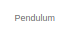
[diagram: root canvas - part 1/3, top left region]
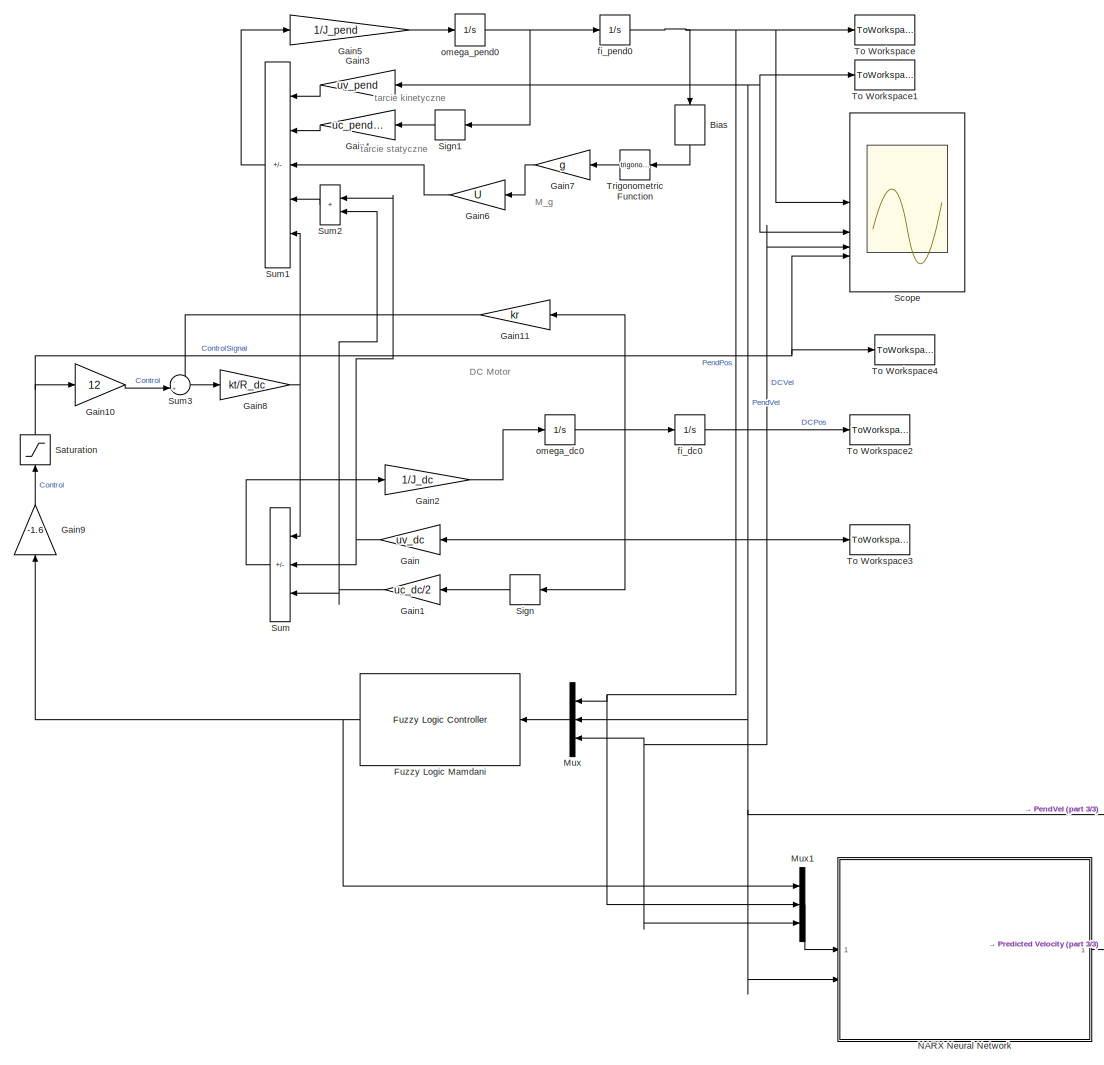
[diagram: root canvas - part 2/3, most of the canvas]
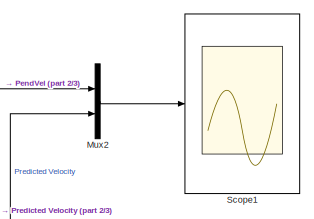
[diagram: root canvas - part 3/3, bottom right region]
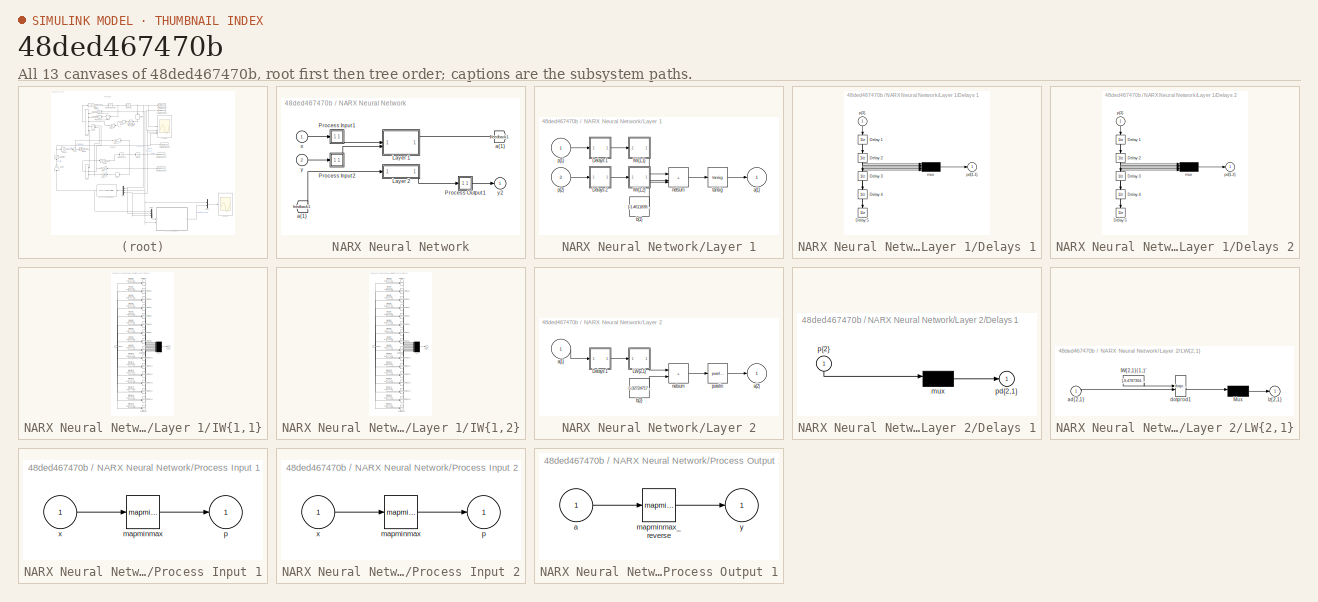
[diagram: thumbnail index - all 13 canvases of the model, root first then tree order]
MODEL slx_48ded467470b
KIND model
CONFIG AbsTol = auto
CONFIG EnableMultiTasking = off
CONFIG FixedStep = auto
CONFIG MaxStep = 1e-2
CONFIG MinStep = auto
CONFIG RelTol = 1e-3
CONFIG SampleTimeConstraint = Unconstrained
CONFIG SolverName = ode23
CONFIG StartTime = 0.0
CONFIG StopTime = 20
BLOCK [Bias] Bias
  Bias = pi
  NameLocation = left
  SaturateOnIntegerOverflow = off
BLOCK [Reference] Fuzzy Logic Mamdani  REF=fuzblock/Fuzzy Logic   (lib defined in mdl_858b3b3e7478)
Controller
  NameLocation = top
  SourceBlock = fuzblock/Fuzzy Logic \nController
  SourceType = Fuzzy Inference System
BLOCK [Gain] Gain
  Gain = uv_dc
  NameLocation = top
BLOCK [Gain] Gain1
  Gain = uc_dc/2
  NameLocation = top
BLOCK [Gain] Gain10
  Gain = 12
BLOCK [Gain] Gain11
  Gain = kr
BLOCK [Gain] Gain2
  Gain = 1/J_dc
BLOCK [Gain] Gain3
  Gain = uv_pend
  NameLocation = top
BLOCK [Gain] Gain4
  Gain = uc_pend/10
  NameLocation = top
BLOCK [Gain] Gain5
  Gain = 1/J_pend
BLOCK [Gain] Gain6
  Gain = U
  NameLocation = top
BLOCK [Gain] Gain7
  Gain = g
  NameLocation = top
BLOCK [Gain] Gain8
  Gain = kt/R_dc
BLOCK [Gain] Gain9
  Gain = -1.6
  NameLocation = right
BLOCK [Mux] Mux
  DisplayOption = bar
  Inputs = 3
  NameLocation = top
BLOCK [Mux] Mux1
  Commented = on
  DisplayOption = bar
  Inputs = 3
BLOCK [Mux] Mux2
  Commented = on
  DisplayOption = bar
  Inputs = 2
BLOCK [SubSystem] NARX Neural Network
  Commented = on
BLOCK [From] NARX Neural Network/ a{1} 
  GotoTag = feedback1
BLOCK [SubSystem] NARX Neural Network/Layer 1
BLOCK [SubSystem] NARX Neural Network/Layer 1/Delays 1
BLOCK [UnitDelay] NARX Neural Network/Layer 1/Delays 1/Delay 1
  InitialCondition = pi_input_1_delayed_1
  NameLocation = left
BLOCK [UnitDelay] NARX Neural Network/Layer 1/Delays 1/Delay 2
  InitialCondition = pi_input_1_delayed_2
  NameLocation = left
BLOCK [UnitDelay] NARX Neural Network/Layer 1/Delays 1/Delay 3
  InitialCondition = pi_input_1_delayed_3
  NameLocation = left
BLOCK [UnitDelay] NARX Neural Network/Layer 1/Delays 1/Delay 4
  InitialCondition = pi_input_1_delayed_4
  NameLocation = left
BLOCK [UnitDelay] NARX Neural Network/Layer 1/Delays 1/Delay 5
  InitialCondition = pi_input_1_delayed_5
  NameLocation = left
BLOCK [Mux] NARX Neural Network/Layer 1/Delays 1/mux
  Inputs = 5
BLOCK [Outport] NARX Neural Network/Layer 1/Delays 1/pd{1,1}
BLOCK [Inport] NARX Neural Network/Layer 1/Delays 1/p{1}
  NameLocation = left
  PortDimensions = 3
  SampleTime = 1
BLOCK [SubSystem] NARX Neural Network/Layer 1/Delays 2
BLOCK [UnitDelay] NARX Neural Network/Layer 1/Delays 2/Delay 1
  InitialCondition = pi_input_2_delayed_1
  NameLocation = left
BLOCK [UnitDelay] NARX Neural Network/Layer 1/Delays 2/Delay 2
  InitialCondition = pi_input_2_delayed_2
  NameLocation = left
BLOCK [UnitDelay] NARX Neural Network/Layer 1/Delays 2/Delay 3
  InitialCondition = pi_input_2_delayed_3
  NameLocation = left
BLOCK [UnitDelay] NARX Neural Network/Layer 1/Delays 2/Delay 4
  InitialCondition = pi_input_2_delayed_4
  NameLocation = left
BLOCK [UnitDelay] NARX Neural Network/Layer 1/Delays 2/Delay 5
  InitialCondition = pi_input_2_delayed_5
  NameLocation = left
BLOCK [Mux] NARX Neural Network/Layer 1/Delays 2/mux
  Inputs = 5
BLOCK [Outport] NARX Neural Network/Layer 1/Delays 2/pd{1,2}
BLOCK [Inport] NARX Neural Network/Layer 1/Delays 2/p{1}
  NameLocation = left
  PortDimensions = 1
  SampleTime = 1
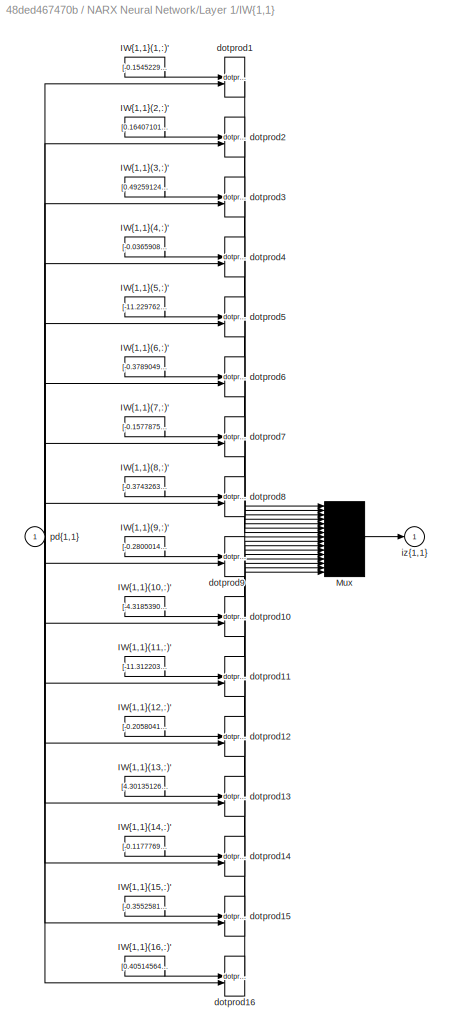
BLOCK [SubSystem] NARX Neural Network/Layer 1/IW{1,1}
BLOCK [Constant] NARX Neural Network/Layer 1/IW{1,1}/IW{1,1}(1,:)'
  Value = [-0.1545229042583383949338582397103891707956790924072265625;-0.96186348302548996258565239259041845798492431640625;0.89991141563431231720215919267502613365650177001953125;0.80910559116573554927498435063171200454235076904296875;0.484893625122811255945265429545543156564235687255859375;2.067594473521470188615012375521473586559295654296875;-0.04005411090331210954840202020932338200509548187255859375;0.7...<+451ch>
BLOCK [Constant] NARX Neural Network/Layer 1/IW{1,1}/IW{1,1}(10,:)'
  Value = [-4.31853902893846086641360670910216867923736572265625;2.3107320934905057896457947208546102046966552734375;-0.08609635826092328081404758677308564074337482452392578125;3.291098663162199233767069017631001770496368408203125;-3.03513911107525924393257810152135789394378662109375;1.0210140464537704740877188669401220977306365966796875;0.289464480145510683062326506842509843409061431884765625;3.78806232839...<+416ch>
BLOCK [Constant] NARX Neural Network/Layer 1/IW{1,1}/IW{1,1}(11,:)'
  Value = [-11.3122036469094258137602082570083439350128173828125;5.93226325782503227657116440241225063800811767578125;-4.06250080451016248872520009172149002552032470703125;9.502181894126881189777122926898300647735595703125;-4.12132173209778951417092685005627572536468505859375;9.1637491315415076087447232566773891448974609375;2.080560966524611199446326281758956611156463623046875;5.4537753102481998368489257700...<+399ch>
BLOCK [Constant] NARX Neural Network/Layer 1/IW{1,1}/IW{1,1}(12,:)'
  Value = [-0.2058041235135446289650218432143446989357471466064453125;-0.283834813198554913871163307703682221472263336181640625;-0.448317552331036484059012536818045191466808319091796875;0.91140787362243680380657906425767578184604644775390625;1.11803880540155464728968581766821444034576416015625;-0.8294896847462640554482504740008153021335601806640625;0.3945265846740415582871719379909336566925048828125;-0.7323...<+431ch>
BLOCK [Constant] NARX Neural Network/Layer 1/IW{1,1}/IW{1,1}(13,:)'
  Value = [4.30135126606410356231435798690654337406158447265625;-0.4016575441077978592119279710459522902965545654296875;-1.24758396324827902645893118460662662982940673828125;-3.1249647327038676536403727368451654911041259765625;0.96870814590598885995831324180471710860729217529296875;2.48854756445259628350186176248826086521148681640625;-0.425352889395446520648391697250190190970897674560546875;-3.6529684181957...<+417ch>
BLOCK [Constant] NARX Neural Network/Layer 1/IW{1,1}/IW{1,1}(14,:)'
  Value = [-0.117776952675239687806652000290341675281524658203125;-1.048233263432347239785258352640084922313690185546875;-1.916212214496942234376319902366958558559417724609375;0.767991482679361237018156316480599343776702880859375;0.84190424018547893592057107525761239230632781982421875;-1.15274317028532724549449994810856878757476806640625;0.42831623343799518632835088283172808587551116943359375;0.248280300023...<+429ch>
BLOCK [Constant] NARX Neural Network/Layer 1/IW{1,1}/IW{1,1}(15,:)'
  Value = [-0.355258152717961295241622110552270896732807159423828125;-0.6793384303563094750444406599854119122028350830078125;1.556926184589264128277363852248527109622955322265625;0.97476361366835106991857173852622509002685546875;-0.26876437336980429915200829782406799495220184326171875;5.2702990132548794832700878032483160495758056640625;-1.24607874843459054403638219810090959072113037109375;0.3564337235625874...<+428ch>
BLOCK [Constant] NARX Neural Network/Layer 1/IW{1,1}/IW{1,1}(16,:)'
  Value = [0.405145645826167688507979391943081282079219818115234375;-0.9683326037188784152220932810450904071331024169921875;-3.01828172068740396838393280631862580776214599609375;-0.98249373577424770065391612661187537014484405517578125;0.126750259362730377521444324884214438498020172119140625;-4.09786193734595993731772978208027780055999755859375;1.1281171122443847121274984601768665015697479248046875;1.5647443...<+430ch>
BLOCK [Constant] NARX Neural Network/Layer 1/IW{1,1}/IW{1,1}(2,:)'
  Value = [0.1640710178293393328718963175560929812490940093994140625;-0.71299518019257079881612071403651498258113861083984375;-2.19435164891444589585489666205830872058868408203125;-0.20722715283148585019290521813672967255115509033203125;0.1805731919815765362802295612709713168442249298095703125;-2.80163681761241445400401062215678393840789794921875;0.68842371224039933252925038686953485012054443359375;0.970127...<+432ch>
BLOCK [Constant] NARX Neural Network/Layer 1/IW{1,1}/IW{1,1}(3,:)'
  Value = [0.492591241431367177217026664948207326233386993408203125;0.9129080004677574411431351109058596193790435791015625;-1.2735458806539339260410770293674431741237640380859375;-1.384443146634420696017286900314502418041229248046875;-0.133662283774207468756145544830360449850559234619140625;-7.1841321277697289815478143282234668731689453125;1.6482652306387939322718239054665900766849517822265625;0.35189520770...<+429ch>
BLOCK [Constant] NARX Neural Network/Layer 1/IW{1,1}/IW{1,1}(4,:)'
  Value = [-0.036590832741877403477825936306544463150203227996826171875;-0.468406362319216673650856819222099147737026214599609375;1.6834827024742138323887274964363314211368560791015625;0.58656235200846484900694122188724577426910400390625;1.280922692004135665655439879628829658031463623046875;-0.74507832750464475513041406884440220892429351806640625;0.67722262162355939540958615907584317028522491455078125;0.502...<+439ch>
BLOCK [Constant] NARX Neural Network/Layer 1/IW{1,1}/IW{1,1}(5,:)'
  Value = [-11.229762430567149067428545095026493072509765625;5.85254163515014891316923240083269774913787841796875;-4.17667224112231139088180498220026493072509765625;9.45518307380465472533614956773817539215087890625;-3.978111055043802135600117253488861024379730224609375;10.1834257906427527728965287678875029087066650390625;2.040008755976502552442752858041785657405853271484375;5.3316495857835981553307647118344...<+393ch>
BLOCK [Constant] NARX Neural Network/Layer 1/IW{1,1}/IW{1,1}(6,:)'
  Value = [-0.37890493516785073158104069079854525625705718994140625;-1.082063020341899051146583587978966534137725830078125;-17.17574901157163225207114010117948055267333984375;0.433817673016630156457296152439084835350513458251953125;0.28566307413047542507200660111266188323497772216796875;-4.367406840024525394028387381695210933685302734375;0.434568323969999836808852933245361782610416412353515625;-0.2354348988...<+422ch>
BLOCK [Constant] NARX Neural Network/Layer 1/IW{1,1}/IW{1,1}(7,:)'
  Value = [-0.1577875832114195298050418614366208203136920928955078125;1.249216612760659206315949631971307098865509033203125;0.144964395873974749573420695014647208154201507568359375;0.44571839072065955189572150629828684031963348388671875;-1.76407989335345849468694723327644169330596923828125;-2.718715718763743183217229670844972133636474609375;-0.41414769049685584700881690878304652869701385498046875;0.97441012...<+445ch>
BLOCK [Constant] NARX Neural Network/Layer 1/IW{1,1}/IW{1,1}(8,:)'
  Value = [-0.37432632755962058634935374357155524194240570068359375;0.7930298561100610488239226469886489212512969970703125;-18.312290685703118242599884979426860809326171875;0.418644401182388048443527850395184941589832305908203125;-1.9722966006950652939622159465216100215911865234375;-4.03006119125274597791985797812230885028839111328125;0.438515186955970637239232701176661066710948944091796875;0.12709858910762...<+418ch>
BLOCK [Constant] NARX Neural Network/Layer 1/IW{1,1}/IW{1,1}(9,:)'
  Value = [-0.2800014949785374351876043874653987586498260498046875;1.3954722749632415546017227825359441339969635009765625;4.83686313824391245219658230780623853206634521484375;0.5224157567332767815315719417412765324115753173828125;-0.02471542295100807862251457436286727897822856903076171875;-7.66696414046361862659750840975902974605560302734375;-0.52923570729363211828655266799614764750003814697265625;-0.826100...<+432ch>
BLOCK [Mux] NARX Neural Network/Layer 1/IW{1,1}/Mux
  Inputs = 16
BLOCK [Reference] NARX Neural Network/Layer 1/IW{1,1}/dotprod1  REF=neural/Weight Functions/dotprod
  SourceBlock = neural/Weight Functions/dotprod
  SourceType = DOTPROD
BLOCK [Reference] NARX Neural Network/Layer 1/IW{1,1}/dotprod10  REF=neural/Weight Functions/dotprod
  SourceBlock = neural/Weight Functions/dotprod
  SourceType = DOTPROD
BLOCK [Reference] NARX Neural Network/Layer 1/IW{1,1}/dotprod11  REF=neural/Weight Functions/dotprod
  SourceBlock = neural/Weight Functions/dotprod
  SourceType = DOTPROD
BLOCK [Reference] NARX Neural Network/Layer 1/IW{1,1}/dotprod12  REF=neural/Weight Functions/dotprod
  SourceBlock = neural/Weight Functions/dotprod
  SourceType = DOTPROD
BLOCK [Reference] NARX Neural Network/Layer 1/IW{1,1}/dotprod13  REF=neural/Weight Functions/dotprod
  SourceBlock = neural/Weight Functions/dotprod
  SourceType = DOTPROD
BLOCK [Reference] NARX Neural Network/Layer 1/IW{1,1}/dotprod14  REF=neural/Weight Functions/dotprod
  SourceBlock = neural/Weight Functions/dotprod
  SourceType = DOTPROD
BLOCK [Reference] NARX Neural Network/Layer 1/IW{1,1}/dotprod15  REF=neural/Weight Functions/dotprod
  SourceBlock = neural/Weight Functions/dotprod
  SourceType = DOTPROD
BLOCK [Reference] NARX Neural Network/Layer 1/IW{1,1}/dotprod16  REF=neural/Weight Functions/dotprod
  SourceBlock = neural/Weight Functions/dotprod
  SourceType = DOTPROD
BLOCK [Reference] NARX Neural Network/Layer 1/IW{1,1}/dotprod2  REF=neural/Weight Functions/dotprod
  SourceBlock = neural/Weight Functions/dotprod
  SourceType = DOTPROD
BLOCK [Reference] NARX Neural Network/Layer 1/IW{1,1}/dotprod3  REF=neural/Weight Functions/dotprod
  SourceBlock = neural/Weight Functions/dotprod
  SourceType = DOTPROD
BLOCK [Reference] NARX Neural Network/Layer 1/IW{1,1}/dotprod4  REF=neural/Weight Functions/dotprod
  SourceBlock = neural/Weight Functions/dotprod
  SourceType = DOTPROD
BLOCK [Reference] NARX Neural Network/Layer 1/IW{1,1}/dotprod5  REF=neural/Weight Functions/dotprod
  SourceBlock = neural/Weight Functions/dotprod
  SourceType = DOTPROD
BLOCK [Reference] NARX Neural Network/Layer 1/IW{1,1}/dotprod6  REF=neural/Weight Functions/dotprod
  SourceBlock = neural/Weight Functions/dotprod
  SourceType = DOTPROD
BLOCK [Reference] NARX Neural Network/Layer 1/IW{1,1}/dotprod7  REF=neural/Weight Functions/dotprod
  SourceBlock = neural/Weight Functions/dotprod
  SourceType = DOTPROD
BLOCK [Reference] NARX Neural Network/Layer 1/IW{1,1}/dotprod8  REF=neural/Weight Functions/dotprod
  SourceBlock = neural/Weight Functions/dotprod
  SourceType = DOTPROD
BLOCK [Reference] NARX Neural Network/Layer 1/IW{1,1}/dotprod9  REF=neural/Weight Functions/dotprod
  SourceBlock = neural/Weight Functions/dotprod
  SourceType = DOTPROD
BLOCK [Outport] NARX Neural Network/Layer 1/IW{1,1}/iz{1,1}
BLOCK [Inport] NARX Neural Network/Layer 1/IW{1,1}/pd{1,1}
  PortDimensions = 15
  SampleTime = 1
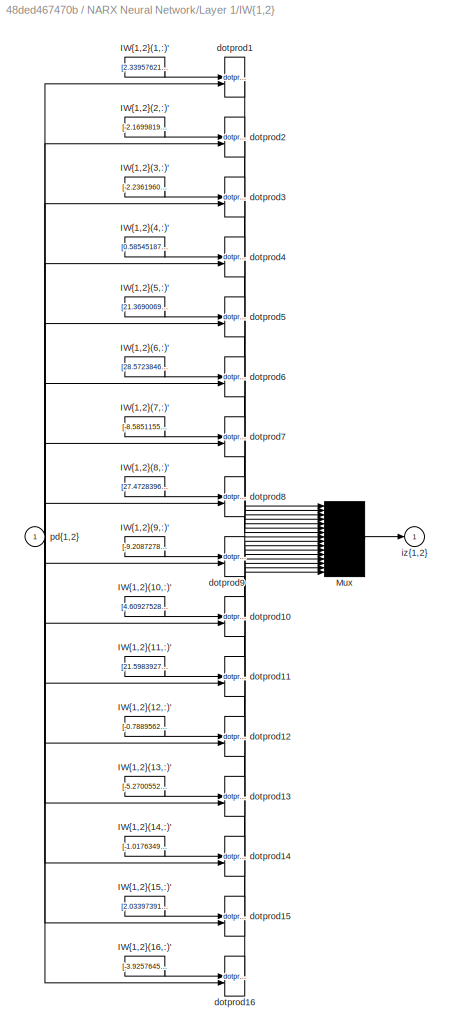
BLOCK [SubSystem] NARX Neural Network/Layer 1/IW{1,2}
BLOCK [Constant] NARX Neural Network/Layer 1/IW{1,2}/IW{1,2}(1,:)'
  Value = [2.33957621553661443414284804021008312702178955078125;-2.038164296392823704451302546658553183078765869140625;-0.329636297113397425118108685637707822024822235107421875;-1.456153806944628481545578324585221707820892333984375;1.4517865692069580330070266427355818450450897216796875]
BLOCK [Constant] NARX Neural Network/Layer 1/IW{1,2}/IW{1,2}(10,:)'
  Value = [4.60927528150380982907563520711846649646759033203125;10.581683193710926360608937102369964122772216796875;3.1145923521644736098323846817947924137115478515625;-3.3427786564308430428127394407056272029876708984375;-6.474745502398718599579297006130218505859375]
BLOCK [Constant] NARX Neural Network/Layer 1/IW{1,2}/IW{1,2}(11,:)'
  Value = [21.598392787297829187309616827405989170074462890625;-4.48557906819758489547211866010911762714385986328125;-1.1565539272489642197427883729687891900539398193359375;8.475737416050630912423002882860600948333740234375;6.108701241118534852603261242620646953582763671875]
BLOCK [Constant] NARX Neural Network/Layer 1/IW{1,2}/IW{1,2}(12,:)'
  Value = [-0.78895625752572107192150951959774829447269439697265625;1.043110076266716479409524254151619970798492431640625;2.335359633717465133173618596629239618778228759765625;-5.09183657225189012507371444371528923511505126953125;2.625270767649209968652712632319889962673187255859375]
BLOCK [Constant] NARX Neural Network/Layer 1/IW{1,2}/IW{1,2}(13,:)'
  Value = [-5.2700552150848505306157676386646926403045654296875;-8.807242356293642160380841232836246490478515625;-4.6057514943586266298325426760129630565643310546875;3.982493978912870158382020235876552760601043701171875;6.17969038038835538628745780442841351032257080078125]
BLOCK [Constant] NARX Neural Network/Layer 1/IW{1,2}/IW{1,2}(14,:)'
  Value = [-1.0176349918865377208732070357655175030231475830078125;1.043168240790681267071704496629536151885986328125;-0.44185732410694900096359560848213732242584228515625;-2.514952603014138698966917218058370053768157958984375;3.065052364150991248692434965050779283046722412109375]
BLOCK [Constant] NARX Neural Network/Layer 1/IW{1,2}/IW{1,2}(15,:)'
  Value = [2.033973915029196888326623593457043170928955078125;-10.930721019002742622205914813093841075897216796875;8.02866983825398250473881489597260951995849609375;-0.1712901654961903330498529385295114479959011077880859375;0.7527962232367162442869812366552650928497314453125]
BLOCK [Constant] NARX Neural Network/Layer 1/IW{1,2}/IW{1,2}(16,:)'
  Value = [-3.925764540236582167409551402670331299304962158203125;7.283058887396947511660982854664325714111328125;-5.3838596306788542023014088044874370098114013671875;1.4528199913436037338243522754055447876453399658203125;0.69704769864014248792472017157706432044506072998046875]
BLOCK [Constant] NARX Neural Network/Layer 1/IW{1,2}/IW{1,2}(2,:)'
  Value = [-2.169981942240450933923057164065539836883544921875;4.37853380666860658720906940288841724395751953125;-3.98099962394213147121035945019684731960296630859375;0.499499726470544247458605013889609836041927337646484375;1.3827003955349697061905089867650531232357025146484375]
BLOCK [Constant] NARX Neural Network/Layer 1/IW{1,2}/IW{1,2}(3,:)'
  Value = [-2.23619601004153256695872187265194952487945556640625;13.72071225933132154750637710094451904296875;-9.0885617165941088302361094974912703037261962890625;-0.74279980741555007295318091564695350825786590576171875;-1.3021546902496605735422008365276269614696502685546875]
BLOCK [Constant] NARX Neural Network/Layer 1/IW{1,2}/IW{1,2}(4,:)'
  Value = [0.585451876023818318373059810255654156208038330078125;2.5430682930140537933993982733227312564849853515625;-0.8195304603695852119216169739956967532634735107421875;-3.540420735219776293689619706128723919391632080078125;1.1791412691857361405567417023121379315853118896484375]
BLOCK [Constant] NARX Neural Network/Layer 1/IW{1,2}/IW{1,2}(5,:)'
  Value = [21.36900690499017940737758181057870388031005859375;-3.752392995656072205434838906512595713138580322265625;-2.228759379662606843197636408149264752864837646484375;9.3036441140549559492001208127476274967193603515625;5.747979956639614584901210037060081958770751953125]
BLOCK [Constant] NARX Neural Network/Layer 1/IW{1,2}/IW{1,2}(6,:)'
  Value = [28.5723846333076068049194873310625553131103515625;4.02720667914904151274413379724137485027313232421875;-6.6655795710645922014236930408515036106109619140625;-9.7257694465923076876379127497784793376922607421875;-11.5124484998806480007260688580572605133056640625]
BLOCK [Constant] NARX Neural Network/Layer 1/IW{1,2}/IW{1,2}(7,:)'
  Value = [-8.585115533667735832068501622416079044342041015625;-4.21790398482044448513761381036601960659027099609375;3.62251687229476448948162214946933090686798095703125;3.766870614350047663521081631188280880451202392578125;4.44338264357204604237949752132408320903778076171875]
BLOCK [Constant] NARX Neural Network/Layer 1/IW{1,2}/IW{1,2}(8,:)'
  Value = [27.4728396563449024370129336602985858917236328125;4.81926333249470673081304994411766529083251953125;-5.89045232730261947295957725145854055881500244140625;-10.419836390636003642384821432642638683319091796875;-11.3347086507183743009363752207718789577484130859375]
BLOCK [Constant] NARX Neural Network/Layer 1/IW{1,2}/IW{1,2}(9,:)'
  Value = [-9.20872787802709780180521192960441112518310546875;-6.59192325361574926745333868893794715404510498046875;3.426758375336147022238719728193245828151702880859375;5.46443431498339560192789576831273734569549560546875;5.70124885185029572909343187347985804080963134765625]
BLOCK [Mux] NARX Neural Network/Layer 1/IW{1,2}/Mux
  Inputs = 16
BLOCK [Reference] NARX Neural Network/Layer 1/IW{1,2}/dotprod1  REF=neural/Weight Functions/dotprod
  SourceBlock = neural/Weight Functions/dotprod
  SourceType = DOTPROD
BLOCK [Reference] NARX Neural Network/Layer 1/IW{1,2}/dotprod10  REF=neural/Weight Functions/dotprod
  SourceBlock = neural/Weight Functions/dotprod
  SourceType = DOTPROD
BLOCK [Reference] NARX Neural Network/Layer 1/IW{1,2}/dotprod11  REF=neural/Weight Functions/dotprod
  SourceBlock = neural/Weight Functions/dotprod
  SourceType = DOTPROD
BLOCK [Reference] NARX Neural Network/Layer 1/IW{1,2}/dotprod12  REF=neural/Weight Functions/dotprod
  SourceBlock = neural/Weight Functions/dotprod
  SourceType = DOTPROD
BLOCK [Reference] NARX Neural Network/Layer 1/IW{1,2}/dotprod13  REF=neural/Weight Functions/dotprod
  SourceBlock = neural/Weight Functions/dotprod
  SourceType = DOTPROD
BLOCK [Reference] NARX Neural Network/Layer 1/IW{1,2}/dotprod14  REF=neural/Weight Functions/dotprod
  SourceBlock = neural/Weight Functions/dotprod
  SourceType = DOTPROD
BLOCK [Reference] NARX Neural Network/Layer 1/IW{1,2}/dotprod15  REF=neural/Weight Functions/dotprod
  SourceBlock = neural/Weight Functions/dotprod
  SourceType = DOTPROD
BLOCK [Reference] NARX Neural Network/Layer 1/IW{1,2}/dotprod16  REF=neural/Weight Functions/dotprod
  SourceBlock = neural/Weight Functions/dotprod
  SourceType = DOTPROD
BLOCK [Reference] NARX Neural Network/Layer 1/IW{1,2}/dotprod2  REF=neural/Weight Functions/dotprod
  SourceBlock = neural/Weight Functions/dotprod
  SourceType = DOTPROD
BLOCK [Reference] NARX Neural Network/Layer 1/IW{1,2}/dotprod3  REF=neural/Weight Functions/dotprod
  SourceBlock = neural/Weight Functions/dotprod
  SourceType = DOTPROD
BLOCK [Reference] NARX Neural Network/Layer 1/IW{1,2}/dotprod4  REF=neural/Weight Functions/dotprod
  SourceBlock = neural/Weight Functions/dotprod
  SourceType = DOTPROD
BLOCK [Reference] NARX Neural Network/Layer 1/IW{1,2}/dotprod5  REF=neural/Weight Functions/dotprod
  SourceBlock = neural/Weight Functions/dotprod
  SourceType = DOTPROD
BLOCK [Reference] NARX Neural Network/Layer 1/IW{1,2}/dotprod6  REF=neural/Weight Functions/dotprod
  SourceBlock = neural/Weight Functions/dotprod
  SourceType = DOTPROD
BLOCK [Reference] NARX Neural Network/Layer 1/IW{1,2}/dotprod7  REF=neural/Weight Functions/dotprod
  SourceBlock = neural/Weight Functions/dotprod
  SourceType = DOTPROD
BLOCK [Reference] NARX Neural Network/Layer 1/IW{1,2}/dotprod8  REF=neural/Weight Functions/dotprod
  SourceBlock = neural/Weight Functions/dotprod
  SourceType = DOTPROD
BLOCK [Reference] NARX Neural Network/Layer 1/IW{1,2}/dotprod9  REF=neural/Weight Functions/dotprod
  SourceBlock = neural/Weight Functions/dotprod
  SourceType = DOTPROD
BLOCK [Outport] NARX Neural Network/Layer 1/IW{1,2}/iz{1,2}
BLOCK [Inport] NARX Neural Network/Layer 1/IW{1,2}/pd{1,2}
  PortDimensions = 5
  SampleTime = 1
BLOCK [Outport] NARX Neural Network/Layer 1/a{1}
  InitialOutput = [0;0;0;0;0;0;0;0;0;0;0;0;0;0;0;0]
BLOCK [Constant] NARX Neural Network/Layer 1/b{1}
  Value = [-1.4611839464535985033677434330456890165805816650390625;1.0301841234885049658487332635559141635894775390625;-1.15288202818684482053868123330175876617431640625;-1.561586935411390708594581155921332538127899169921875;0.00345597052504738495859459845860328641720116138458251953125;-0.006509689634341390973570895539523917250335216522216796875;0.000195421264286061959402837628907434464053949341177940368652...<+542ch>
BLOCK [Sum] NARX Neural Network/Layer 1/netsum
  IconShape = rectangular
  InputSameDT = on
  Inputs = 3
  OutDataTypeStr = Inherit: Same as first input
  SaturateOnIntegerOverflow = on
BLOCK [Inport] NARX Neural Network/Layer 1/p{1}
  PortDimensions = 3
  SampleTime = 1
BLOCK [Inport] NARX Neural Network/Layer 1/p{2}
  Port = 2
  PortDimensions = 1
  SampleTime = 1
BLOCK [Reference] NARX Neural Network/Layer 1/tansig  REF=neural/Transfer Functions/tansig
  SourceBlock = neural/Transfer Functions/tansig
  SourceType = TANSIG
BLOCK [SubSystem] NARX Neural Network/Layer 2
BLOCK [SubSystem] NARX Neural Network/Layer 2/Delays 1
BLOCK [Mux] NARX Neural Network/Layer 2/Delays 1/mux
  Inputs = 1
BLOCK [Outport] NARX Neural Network/Layer 2/Delays 1/pd{2,1}
BLOCK [Inport] NARX Neural Network/Layer 2/Delays 1/p{2}
  NameLocation = left
  PortDimensions = 16
  SampleTime = 1
BLOCK [SubSystem] NARX Neural Network/Layer 2/LW{2,1}
BLOCK [Constant] NARX Neural Network/Layer 2/LW{2,1}/IW{2,1}(1,:)'
  Value = [-9.4787304848626252606891284813173115253448486328125;15.31243799939991134806405170820653438568115234375;-5.52654974411817168089555707410909235477447509765625;3.977808003020636196112036486738361418247222900390625;-3.3778480689296070949012573692016303539276123046875;-6.5233884098060794798357164836488664150238037109375;-7.61783875947848887477675816626287996768951416015625;6.5356929764733378007690589...<+439ch>
BLOCK [Mux] NARX Neural Network/Layer 2/LW{2,1}/Mux
  Inputs = 1
BLOCK [Inport] NARX Neural Network/Layer 2/LW{2,1}/ad{2,1}
  PortDimensions = 16
  SampleTime = 1
BLOCK [Reference] NARX Neural Network/Layer 2/LW{2,1}/dotprod1  REF=neural/Weight Functions/dotprod
  SourceBlock = neural/Weight Functions/dotprod
  SourceType = DOTPROD
BLOCK [Outport] NARX Neural Network/Layer 2/LW{2,1}/lz{2,1}
BLOCK [Inport] NARX Neural Network/Layer 2/a{1} 
  PortDimensions = 16
  SampleTime = 1
BLOCK [Outport] NARX Neural Network/Layer 2/a{2}
  InitialOutput = 0
BLOCK [Constant] NARX Neural Network/Layer 2/b{2}
  Value = -5.027247175947422874742187559604644775390625
BLOCK [Sum] NARX Neural Network/Layer 2/netsum
  IconShape = rectangular
  InputSameDT = on
  Inputs = 2
  OutDataTypeStr = Inherit: Same as first input
  SaturateOnIntegerOverflow = on
BLOCK [Reference] NARX Neural Network/Layer 2/purelin  REF=neural/Transfer Functions/purelin
  SourceBlock = neural/Transfer Functions/purelin
  SourceType = PURELIN
BLOCK [SubSystem] NARX Neural Network/Process Input 1
BLOCK [Reference] NARX Neural Network/Process Input 1/mapminmax  REF=neural/Processing Functions/mapminmax
  SourceBlock = neural/Processing Functions/mapminmax
  SourceType = MAPMINMAX Preprocess
BLOCK [Outport] NARX Neural Network/Process Input 1/p
  PortDimensions = 3
  SampleTime = 1
BLOCK [Inport] NARX Neural Network/Process Input 1/x
  PortDimensions = 3
  SampleTime = 1
BLOCK [SubSystem] NARX Neural Network/Process Input 2
BLOCK [Reference] NARX Neural Network/Process Input 2/mapminmax  REF=neural/Processing Functions/mapminmax
  SourceBlock = neural/Processing Functions/mapminmax
  SourceType = MAPMINMAX Preprocess
BLOCK [Outport] NARX Neural Network/Process Input 2/p
  PortDimensions = 1
  SampleTime = 1
BLOCK [Inport] NARX Neural Network/Process Input 2/x
  PortDimensions = 1
  SampleTime = 1
BLOCK [SubSystem] NARX Neural Network/Process Output 1
BLOCK [Inport] NARX Neural Network/Process Output 1/a
  PortDimensions = 1
  SampleTime = 1
BLOCK [Reference] NARX Neural Network/Process Output 1/mapminmax_reverse  REF=neural/Processing Functions/mapminmax_reverse
  SourceBlock = neural/Processing Functions/mapminmax_reverse
  SourceType = MAPMINMAX Reverse Process
BLOCK [Outport] NARX Neural Network/Process Output 1/y
  PortDimensions = 1
  SampleTime = 1
BLOCK [Goto] NARX Neural Network/a{1}
  GotoTag = feedback1
BLOCK [Inport] NARX Neural Network/x
  PortDimensions = 3
  SampleTime = 1
BLOCK [Inport] NARX Neural Network/y
  Port = 2
  PortDimensions = 1
  SampleTime = 1
BLOCK [Outport] NARX Neural Network/y2
  InitialOutput = 0
BLOCK [Saturate] Saturation
  LowerLimit = -1
  NameLocation = right
  UpperLimit = 1
BLOCK [Scope] Scope
  Floating = off
  NumInputPorts = 4
  ScopeSpecificationString = Simulink.scopes.TimeScopeBlockCfg('CurrentConfiguration', extmgr.ConfigurationSet(extmgr.Configuration('Core','General UI',true),extmgr.Configuration('Core','Source UI',true),extmgr.Configuration('Sources','WiredSimulink',true,'DataLogging',true,'DataLoggingSaveFormat','StructureWithTime'),extmgr.Configuration('Visuals','Time Domain',true,'SerializedDisplays',{struct('MinYLimReal','-0.47674','MaxY...<+5354ch>
BLOCK [Scope] Scope1
  Commented = on
  Floating = off
  NumInputPorts = 1
  ScopeSpecificationString = Simulink.scopes.TimeScopeBlockCfg('CurrentConfiguration', extmgr.ConfigurationSet(extmgr.Configuration('Core','General UI',true),extmgr.Configuration('Core','Source UI',true),extmgr.Configuration('Sources','WiredSimulink',true,'DataLoggingSaveFormat','StructureWithTime','DataLoggingVariableName','ScopeData1'),extmgr.Configuration('Visuals','Time Domain',true,'SerializedDisplays',{struct('MinYLimRe...<+1737ch>
BLOCK [Signum] Sign
  NameLocation = top
  ZeroCross = off
BLOCK [Signum] Sign1
  NameLocation = top
  ZeroCross = off
BLOCK [Sum] Sum
  IconShape = rectangular
  Inputs = +--
  NameLocation = top
BLOCK [Sum] Sum1
  IconShape = rectangular
  Inputs = ---+-
  NameLocation = top
BLOCK [Sum] Sum2
  IconShape = rectangular
  NameLocation = top
BLOCK [Sum] Sum3
  Inputs = -+|
BLOCK [ToWorkspace] To Workspace
  FixptAsFi = on
  MaxDataPoints = inf
  SampleTime = -1
  SaveFormat = Structure With Time
  VariableName = PendPos
BLOCK [ToWorkspace] To Workspace1
  FixptAsFi = on
  MaxDataPoints = inf
  SampleTime = -1
  SaveFormat = Structure With Time
  VariableName = PendVel
BLOCK [ToWorkspace] To Workspace2
  FixptAsFi = on
  MaxDataPoints = inf
  SampleTime = -1
  SaveFormat = Structure With Time
  VariableName = dcPos
BLOCK [ToWorkspace] To Workspace3
  FixptAsFi = on
  MaxDataPoints = inf
  SampleTime = -1
  SaveFormat = Structure With Time
  VariableName = dcVel
BLOCK [ToWorkspace] To Workspace4
  FixptAsFi = on
  MaxDataPoints = inf
  SampleTime = -1
  SaveFormat = Structure With Time
  VariableName = Control
BLOCK [Trigonometry] Trigonometric Function
  NameLocation = top
BLOCK [Integrator] fi_dc0
  InitialCondition = fi_dc0
BLOCK [Integrator] fi_pend0
  InitialCondition = fi_pend0%deg2rad(30)
BLOCK [Integrator] omega_dc0
  InitialCondition = 0%deg2rad(25000)
BLOCK [Integrator] omega_pend0
  InitialCondition = 0%deg2rad(30)
ANNOTATION (root): DC Motor
ANNOTATION (root): Pendulum
ANNOTATION (root): M_g
ANNOTATION (root): tarcie kinetyczne
ANNOTATION (root): tarcie statyczne
LINE Bias:1 -> Trigonometric Function:1
NET Fuzzy Logic Mamdani:1 -> Gain9:1, Mux1:1
LINE Gain10:1 -> Sum3:2
LINE Gain11:1 -> Sum3:1
NET Gain1:1 -> Sum2:2, Sum:3
LINE Gain2:1 -> omega_dc0:1
LINE Gain3:1 -> Sum1:1
LINE Gain4:1 -> Sum1:2
LINE Gain5:1 -> omega_pend0:1
LINE Gain6:1 -> Sum1:3
LINE Gain7:1 -> Gain6:1
NET Gain8:1 -> Sum1:5, Sum:1
LINE Gain9:1 -> Saturation:1
NET Gain:1 -> Sum2:1, Sum:2
LINE Mux1:1 -> NARX Neural Network:1
LINE Mux2:1 -> Scope1:1
LINE Mux:1 -> Fuzzy Logic Mamdani:1
LINE NARX Neural Network/ a{1} :1 -> NARX Neural Network/Layer 2:1
NET NARX Neural Network/Layer 1/Delays 1/Delay 1:1 -> NARX Neural Network/Layer 1/Delays 1/Delay 2:1, NARX Neural Network/Layer 1/Delays 1/mux:1
NET NARX Neural Network/Layer 1/Delays 1/Delay 2:1 -> NARX Neural Network/Layer 1/Delays 1/Delay 3:1, NARX Neural Network/Layer 1/Delays 1/mux:2
NET NARX Neural Network/Layer 1/Delays 1/Delay 3:1 -> NARX Neural Network/Layer 1/Delays 1/Delay 4:1, NARX Neural Network/Layer 1/Delays 1/mux:3
NET NARX Neural Network/Layer 1/Delays 1/Delay 4:1 -> NARX Neural Network/Layer 1/Delays 1/Delay 5:1, NARX Neural Network/Layer 1/Delays 1/mux:4
LINE NARX Neural Network/Layer 1/Delays 1/Delay 5:1 -> NARX Neural Network/Layer 1/Delays 1/mux:5
LINE NARX Neural Network/Layer 1/Delays 1/mux:1 -> NARX Neural Network/Layer 1/Delays 1/pd{1,1}:1
LINE NARX Neural Network/Layer 1/Delays 1/p{1}:1 -> NARX Neural Network/Layer 1/Delays 1/Delay 1:1
LINE NARX Neural Network/Layer 1/Delays 1:1 -> NARX Neural Network/Layer 1/IW{1,1}:1
NET NARX Neural Network/Layer 1/Delays 2/Delay 1:1 -> NARX Neural Network/Layer 1/Delays 2/Delay 2:1, NARX Neural Network/Layer 1/Delays 2/mux:1
NET NARX Neural Network/Layer 1/Delays 2/Delay 2:1 -> NARX Neural Network/Layer 1/Delays 2/Delay 3:1, NARX Neural Network/Layer 1/Delays 2/mux:2
NET NARX Neural Network/Layer 1/Delays 2/Delay 3:1 -> NARX Neural Network/Layer 1/Delays 2/Delay 4:1, NARX Neural Network/Layer 1/Delays 2/mux:3
NET NARX Neural Network/Layer 1/Delays 2/Delay 4:1 -> NARX Neural Network/Layer 1/Delays 2/Delay 5:1, NARX Neural Network/Layer 1/Delays 2/mux:4
LINE NARX Neural Network/Layer 1/Delays 2/Delay 5:1 -> NARX Neural Network/Layer 1/Delays 2/mux:5
LINE NARX Neural Network/Layer 1/Delays 2/mux:1 -> NARX Neural Network/Layer 1/Delays 2/pd{1,2}:1
LINE NARX Neural Network/Layer 1/Delays 2/p{1}:1 -> NARX Neural Network/Layer 1/Delays 2/Delay 1:1
LINE NARX Neural Network/Layer 1/Delays 2:1 -> NARX Neural Network/Layer 1/IW{1,2}:1
LINE NARX Neural Network/Layer 1/IW{1,1}/IW{1,1}(1,:)':1 -> NARX Neural Network/Layer 1/IW{1,1}/dotprod1:1
LINE NARX Neural Network/Layer 1/IW{1,1}/IW{1,1}(10,:)':1 -> NARX Neural Network/Layer 1/IW{1,1}/dotprod10:1
LINE NARX Neural Network/Layer 1/IW{1,1}/IW{1,1}(11,:)':1 -> NARX Neural Network/Layer 1/IW{1,1}/dotprod11:1
LINE NARX Neural Network/Layer 1/IW{1,1}/IW{1,1}(12,:)':1 -> NARX Neural Network/Layer 1/IW{1,1}/dotprod12:1
LINE NARX Neural Network/Layer 1/IW{1,1}/IW{1,1}(13,:)':1 -> NARX Neural Network/Layer 1/IW{1,1}/dotprod13:1
LINE NARX Neural Network/Layer 1/IW{1,1}/IW{1,1}(14,:)':1 -> NARX Neural Network/Layer 1/IW{1,1}/dotprod14:1
LINE NARX Neural Network/Layer 1/IW{1,1}/IW{1,1}(15,:)':1 -> NARX Neural Network/Layer 1/IW{1,1}/dotprod15:1
LINE NARX Neural Network/Layer 1/IW{1,1}/IW{1,1}(16,:)':1 -> NARX Neural Network/Layer 1/IW{1,1}/dotprod16:1
LINE NARX Neural Network/Layer 1/IW{1,1}/IW{1,1}(2,:)':1 -> NARX Neural Network/Layer 1/IW{1,1}/dotprod2:1
LINE NARX Neural Network/Layer 1/IW{1,1}/IW{1,1}(3,:)':1 -> NARX Neural Network/Layer 1/IW{1,1}/dotprod3:1
LINE NARX Neural Network/Layer 1/IW{1,1}/IW{1,1}(4,:)':1 -> NARX Neural Network/Layer 1/IW{1,1}/dotprod4:1
LINE NARX Neural Network/Layer 1/IW{1,1}/IW{1,1}(5,:)':1 -> NARX Neural Network/Layer 1/IW{1,1}/dotprod5:1
LINE NARX Neural Network/Layer 1/IW{1,1}/IW{1,1}(6,:)':1 -> NARX Neural Network/Layer 1/IW{1,1}/dotprod6:1
LINE NARX Neural Network/Layer 1/IW{1,1}/IW{1,1}(7,:)':1 -> NARX Neural Network/Layer 1/IW{1,1}/dotprod7:1
LINE NARX Neural Network/Layer 1/IW{1,1}/IW{1,1}(8,:)':1 -> NARX Neural Network/Layer 1/IW{1,1}/dotprod8:1
LINE NARX Neural Network/Layer 1/IW{1,1}/IW{1,1}(9,:)':1 -> NARX Neural Network/Layer 1/IW{1,1}/dotprod9:1
LINE NARX Neural Network/Layer 1/IW{1,1}/Mux:1 -> NARX Neural Network/Layer 1/IW{1,1}/iz{1,1}:1
LINE NARX Neural Network/Layer 1/IW{1,1}/dotprod10:1 -> NARX Neural Network/Layer 1/IW{1,1}/Mux:10
LINE NARX Neural Network/Layer 1/IW{1,1}/dotprod11:1 -> NARX Neural Network/Layer 1/IW{1,1}/Mux:11
LINE NARX Neural Network/Layer 1/IW{1,1}/dotprod12:1 -> NARX Neural Network/Layer 1/IW{1,1}/Mux:12
LINE NARX Neural Network/Layer 1/IW{1,1}/dotprod13:1 -> NARX Neural Network/Layer 1/IW{1,1}/Mux:13
LINE NARX Neural Network/Layer 1/IW{1,1}/dotprod14:1 -> NARX Neural Network/Layer 1/IW{1,1}/Mux:14
LINE NARX Neural Network/Layer 1/IW{1,1}/dotprod15:1 -> NARX Neural Network/Layer 1/IW{1,1}/Mux:15
LINE NARX Neural Network/Layer 1/IW{1,1}/dotprod16:1 -> NARX Neural Network/Layer 1/IW{1,1}/Mux:16
LINE NARX Neural Network/Layer 1/IW{1,1}/dotprod1:1 -> NARX Neural Network/Layer 1/IW{1,1}/Mux:1
LINE NARX Neural Network/Layer 1/IW{1,1}/dotprod2:1 -> NARX Neural Network/Layer 1/IW{1,1}/Mux:2
LINE NARX Neural Network/Layer 1/IW{1,1}/dotprod3:1 -> NARX Neural Network/Layer 1/IW{1,1}/Mux:3
LINE NARX Neural Network/Layer 1/IW{1,1}/dotprod4:1 -> NARX Neural Network/Layer 1/IW{1,1}/Mux:4
LINE NARX Neural Network/Layer 1/IW{1,1}/dotprod5:1 -> NARX Neural Network/Layer 1/IW{1,1}/Mux:5
LINE NARX Neural Network/Layer 1/IW{1,1}/dotprod6:1 -> NARX Neural Network/Layer 1/IW{1,1}/Mux:6
LINE NARX Neural Network/Layer 1/IW{1,1}/dotprod7:1 -> NARX Neural Network/Layer 1/IW{1,1}/Mux:7
LINE NARX Neural Network/Layer 1/IW{1,1}/dotprod8:1 -> NARX Neural Network/Layer 1/IW{1,1}/Mux:8
LINE NARX Neural Network/Layer 1/IW{1,1}/dotprod9:1 -> NARX Neural Network/Layer 1/IW{1,1}/Mux:9
NET NARX Neural Network/Layer 1/IW{1,1}/pd{1,1}:1 -> NARX Neural Network/Layer 1/IW{1,1}/dotprod10:2, NARX Neural Network/Layer 1/IW{1,1}/dotprod11:2, NARX Neural Network/Layer 1/IW{1,1}/dotprod12:2, NARX Neural Network/Layer 1/IW{1,1}/dotprod13:2, NARX Neural Network/Layer 1/IW{1,1}/dotprod14:2, NARX Neural Network/Layer 1/IW{1,1}/dotprod15:2, NARX Neural Network/Layer 1/IW{1,1}/dotprod16:2, NARX Neural Network/Layer 1/IW{1,1}/dotprod1:2, NARX Neural Network/Layer 1/IW{1,1}/dotprod2:2, NARX Neural Network/Layer 1/IW{1,1}/dotprod3:2, NARX Neural Network/Layer 1/IW{1,1}/dotprod4:2, NARX Neural Network/Layer 1/IW{1,1}/dotprod5:2, NARX Neural Network/Layer 1/IW{1,1}/dotprod6:2, NARX Neural Network/Layer 1/IW{1,1}/dotprod7:2, NARX Neural Network/Layer 1/IW{1,1}/dotprod8:2, NARX Neural Network/Layer 1/IW{1,1}/dotprod9:2
LINE NARX Neural Network/Layer 1/IW{1,1}:1 -> NARX Neural Network/Layer 1/netsum:1
LINE NARX Neural Network/Layer 1/IW{1,2}/IW{1,2}(1,:)':1 -> NARX Neural Network/Layer 1/IW{1,2}/dotprod1:1
LINE NARX Neural Network/Layer 1/IW{1,2}/IW{1,2}(10,:)':1 -> NARX Neural Network/Layer 1/IW{1,2}/dotprod10:1
LINE NARX Neural Network/Layer 1/IW{1,2}/IW{1,2}(11,:)':1 -> NARX Neural Network/Layer 1/IW{1,2}/dotprod11:1
LINE NARX Neural Network/Layer 1/IW{1,2}/IW{1,2}(12,:)':1 -> NARX Neural Network/Layer 1/IW{1,2}/dotprod12:1
LINE NARX Neural Network/Layer 1/IW{1,2}/IW{1,2}(13,:)':1 -> NARX Neural Network/Layer 1/IW{1,2}/dotprod13:1
LINE NARX Neural Network/Layer 1/IW{1,2}/IW{1,2}(14,:)':1 -> NARX Neural Network/Layer 1/IW{1,2}/dotprod14:1
LINE NARX Neural Network/Layer 1/IW{1,2}/IW{1,2}(15,:)':1 -> NARX Neural Network/Layer 1/IW{1,2}/dotprod15:1
LINE NARX Neural Network/Layer 1/IW{1,2}/IW{1,2}(16,:)':1 -> NARX Neural Network/Layer 1/IW{1,2}/dotprod16:1
LINE NARX Neural Network/Layer 1/IW{1,2}/IW{1,2}(2,:)':1 -> NARX Neural Network/Layer 1/IW{1,2}/dotprod2:1
LINE NARX Neural Network/Layer 1/IW{1,2}/IW{1,2}(3,:)':1 -> NARX Neural Network/Layer 1/IW{1,2}/dotprod3:1
LINE NARX Neural Network/Layer 1/IW{1,2}/IW{1,2}(4,:)':1 -> NARX Neural Network/Layer 1/IW{1,2}/dotprod4:1
LINE NARX Neural Network/Layer 1/IW{1,2}/IW{1,2}(5,:)':1 -> NARX Neural Network/Layer 1/IW{1,2}/dotprod5:1
LINE NARX Neural Network/Layer 1/IW{1,2}/IW{1,2}(6,:)':1 -> NARX Neural Network/Layer 1/IW{1,2}/dotprod6:1
LINE NARX Neural Network/Layer 1/IW{1,2}/IW{1,2}(7,:)':1 -> NARX Neural Network/Layer 1/IW{1,2}/dotprod7:1
LINE NARX Neural Network/Layer 1/IW{1,2}/IW{1,2}(8,:)':1 -> NARX Neural Network/Layer 1/IW{1,2}/dotprod8:1
LINE NARX Neural Network/Layer 1/IW{1,2}/IW{1,2}(9,:)':1 -> NARX Neural Network/Layer 1/IW{1,2}/dotprod9:1
LINE NARX Neural Network/Layer 1/IW{1,2}/Mux:1 -> NARX Neural Network/Layer 1/IW{1,2}/iz{1,2}:1
LINE NARX Neural Network/Layer 1/IW{1,2}/dotprod10:1 -> NARX Neural Network/Layer 1/IW{1,2}/Mux:10
LINE NARX Neural Network/Layer 1/IW{1,2}/dotprod11:1 -> NARX Neural Network/Layer 1/IW{1,2}/Mux:11
LINE NARX Neural Network/Layer 1/IW{1,2}/dotprod12:1 -> NARX Neural Network/Layer 1/IW{1,2}/Mux:12
LINE NARX Neural Network/Layer 1/IW{1,2}/dotprod13:1 -> NARX Neural Network/Layer 1/IW{1,2}/Mux:13
LINE NARX Neural Network/Layer 1/IW{1,2}/dotprod14:1 -> NARX Neural Network/Layer 1/IW{1,2}/Mux:14
LINE NARX Neural Network/Layer 1/IW{1,2}/dotprod15:1 -> NARX Neural Network/Layer 1/IW{1,2}/Mux:15
LINE NARX Neural Network/Layer 1/IW{1,2}/dotprod16:1 -> NARX Neural Network/Layer 1/IW{1,2}/Mux:16
LINE NARX Neural Network/Layer 1/IW{1,2}/dotprod1:1 -> NARX Neural Network/Layer 1/IW{1,2}/Mux:1
LINE NARX Neural Network/Layer 1/IW{1,2}/dotprod2:1 -> NARX Neural Network/Layer 1/IW{1,2}/Mux:2
LINE NARX Neural Network/Layer 1/IW{1,2}/dotprod3:1 -> NARX Neural Network/Layer 1/IW{1,2}/Mux:3
LINE NARX Neural Network/Layer 1/IW{1,2}/dotprod4:1 -> NARX Neural Network/Layer 1/IW{1,2}/Mux:4
LINE NARX Neural Network/Layer 1/IW{1,2}/dotprod5:1 -> NARX Neural Network/Layer 1/IW{1,2}/Mux:5
LINE NARX Neural Network/Layer 1/IW{1,2}/dotprod6:1 -> NARX Neural Network/Layer 1/IW{1,2}/Mux:6
LINE NARX Neural Network/Layer 1/IW{1,2}/dotprod7:1 -> NARX Neural Network/Layer 1/IW{1,2}/Mux:7
LINE NARX Neural Network/Layer 1/IW{1,2}/dotprod8:1 -> NARX Neural Network/Layer 1/IW{1,2}/Mux:8
LINE NARX Neural Network/Layer 1/IW{1,2}/dotprod9:1 -> NARX Neural Network/Layer 1/IW{1,2}/Mux:9
NET NARX Neural Network/Layer 1/IW{1,2}/pd{1,2}:1 -> NARX Neural Network/Layer 1/IW{1,2}/dotprod10:2, NARX Neural Network/Layer 1/IW{1,2}/dotprod11:2, NARX Neural Network/Layer 1/IW{1,2}/dotprod12:2, NARX Neural Network/Layer 1/IW{1,2}/dotprod13:2, NARX Neural Network/Layer 1/IW{1,2}/dotprod14:2, NARX Neural Network/Layer 1/IW{1,2}/dotprod15:2, NARX Neural Network/Layer 1/IW{1,2}/dotprod16:2, NARX Neural Network/Layer 1/IW{1,2}/dotprod1:2, NARX Neural Network/Layer 1/IW{1,2}/dotprod2:2, NARX Neural Network/Layer 1/IW{1,2}/dotprod3:2, NARX Neural Network/Layer 1/IW{1,2}/dotprod4:2, NARX Neural Network/Layer 1/IW{1,2}/dotprod5:2, NARX Neural Network/Layer 1/IW{1,2}/dotprod6:2, NARX Neural Network/Layer 1/IW{1,2}/dotprod7:2, NARX Neural Network/Layer 1/IW{1,2}/dotprod8:2, NARX Neural Network/Layer 1/IW{1,2}/dotprod9:2
LINE NARX Neural Network/Layer 1/IW{1,2}:1 -> NARX Neural Network/Layer 1/netsum:2
LINE NARX Neural Network/Layer 1/b{1}:1 -> NARX Neural Network/Layer 1/netsum:3
LINE NARX Neural Network/Layer 1/netsum:1 -> NARX Neural Network/Layer 1/tansig:1
LINE NARX Neural Network/Layer 1/p{1}:1 -> NARX Neural Network/Layer 1/Delays 1:1
LINE NARX Neural Network/Layer 1/p{2}:1 -> NARX Neural Network/Layer 1/Delays 2:1
LINE NARX Neural Network/Layer 1/tansig:1 -> NARX Neural Network/Layer 1/a{1}:1
LINE NARX Neural Network/Layer 1:1 -> NARX Neural Network/a{1}:1
LINE NARX Neural Network/Layer 2/Delays 1/mux:1 -> NARX Neural Network/Layer 2/Delays 1/pd{2,1}:1
LINE NARX Neural Network/Layer 2/Delays 1/p{2}:1 -> NARX Neural Network/Layer 2/Delays 1/mux:1
LINE NARX Neural Network/Layer 2/Delays 1:1 -> NARX Neural Network/Layer 2/LW{2,1}:1
LINE NARX Neural Network/Layer 2/LW{2,1}/IW{2,1}(1,:)':1 -> NARX Neural Network/Layer 2/LW{2,1}/dotprod1:1
LINE NARX Neural Network/Layer 2/LW{2,1}/Mux:1 -> NARX Neural Network/Layer 2/LW{2,1}/lz{2,1}:1
LINE NARX Neural Network/Layer 2/LW{2,1}/ad{2,1}:1 -> NARX Neural Network/Layer 2/LW{2,1}/dotprod1:2
LINE NARX Neural Network/Layer 2/LW{2,1}/dotprod1:1 -> NARX Neural Network/Layer 2/LW{2,1}/Mux:1
LINE NARX Neural Network/Layer 2/LW{2,1}:1 -> NARX Neural Network/Layer 2/netsum:1
LINE NARX Neural Network/Layer 2/a{1} :1 -> NARX Neural Network/Layer 2/Delays 1:1
LINE NARX Neural Network/Layer 2/b{2}:1 -> NARX Neural Network/Layer 2/netsum:2
LINE NARX Neural Network/Layer 2/netsum:1 -> NARX Neural Network/Layer 2/purelin:1
LINE NARX Neural Network/Layer 2/purelin:1 -> NARX Neural Network/Layer 2/a{2}:1
LINE NARX Neural Network/Layer 2:1 -> NARX Neural Network/Process Output 1:1
LINE NARX Neural Network/Process Input 1/mapminmax:1 -> NARX Neural Network/Process Input 1/p:1
LINE NARX Neural Network/Process Input 1/x:1 -> NARX Neural Network/Process Input 1/mapminmax:1
LINE NARX Neural Network/Process Input 1:1 -> NARX Neural Network/Layer 1:1
LINE NARX Neural Network/Process Input 2/mapminmax:1 -> NARX Neural Network/Process Input 2/p:1
LINE NARX Neural Network/Process Input 2/x:1 -> NARX Neural Network/Process Input 2/mapminmax:1
LINE NARX Neural Network/Process Input 2:1 -> NARX Neural Network/Layer 1:2
LINE NARX Neural Network/Process Output 1/a:1 -> NARX Neural Network/Process Output 1/mapminmax_reverse:1
LINE NARX Neural Network/Process Output 1/mapminmax_reverse:1 -> NARX Neural Network/Process Output 1/y:1
LINE NARX Neural Network/Process Output 1:1 -> NARX Neural Network/y2:1
LINE NARX Neural Network/x:1 -> NARX Neural Network/Process Input 1:1
LINE NARX Neural Network/y:1 -> NARX Neural Network/Process Input 2:1
LINE NARX Neural Network:1 -> Mux2:2
NET Saturation:1 -> Gain10:1, Scope:4, To Workspace4:1
LINE Sign1:1 -> Gain4:1
LINE Sign:1 -> Gain1:1
LINE Sum1:1 -> Gain5:1
LINE Sum2:1 -> Sum1:4
LINE Sum3:1 -> Gain8:1
LINE Sum:1 -> Gain2:1
LINE Trigonometric Function:1 -> Gain7:1
LINE fi_dc0:1 -> To Workspace2:1
NET fi_pend0:1 -> Bias:1, Mux1:2, Mux:1, Scope:1, To Workspace:1
NET omega_dc0:1 -> Gain11:1, Gain:1, Mux1:3, Mux:3, Scope:3, Sign:1, To Workspace3:1, fi_dc0:1
NET omega_pend0:1 -> Gain3:1, Mux2:1, Mux:2, NARX Neural Network:2, Scope:2, Sign1:1, To Workspace1:1, fi_pend0:1
note: NET lines group one-source signal fan-out (src -> all destinations, sorted); 1:1 wires keep LINE
